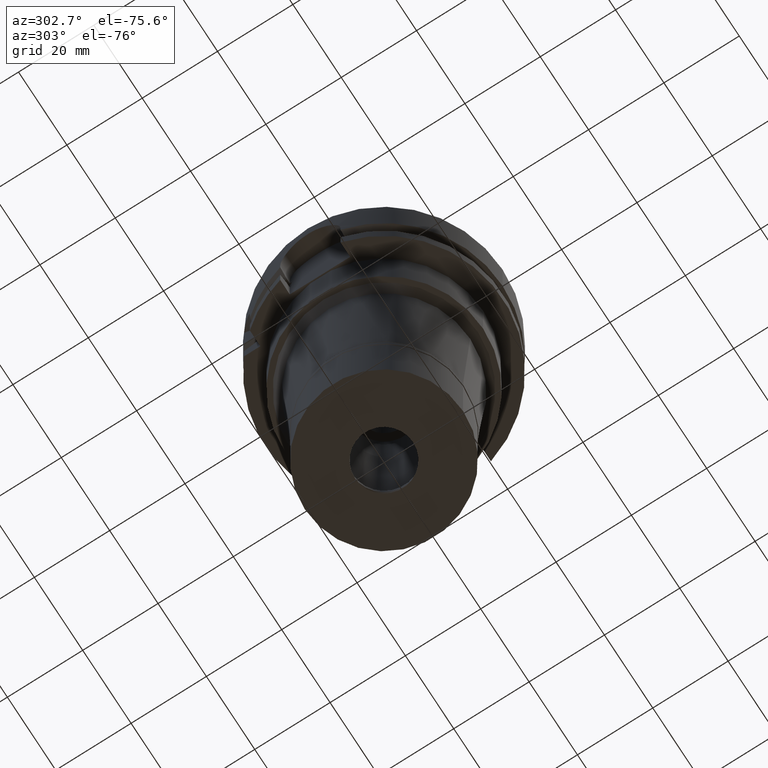
[diagram: clean part render]
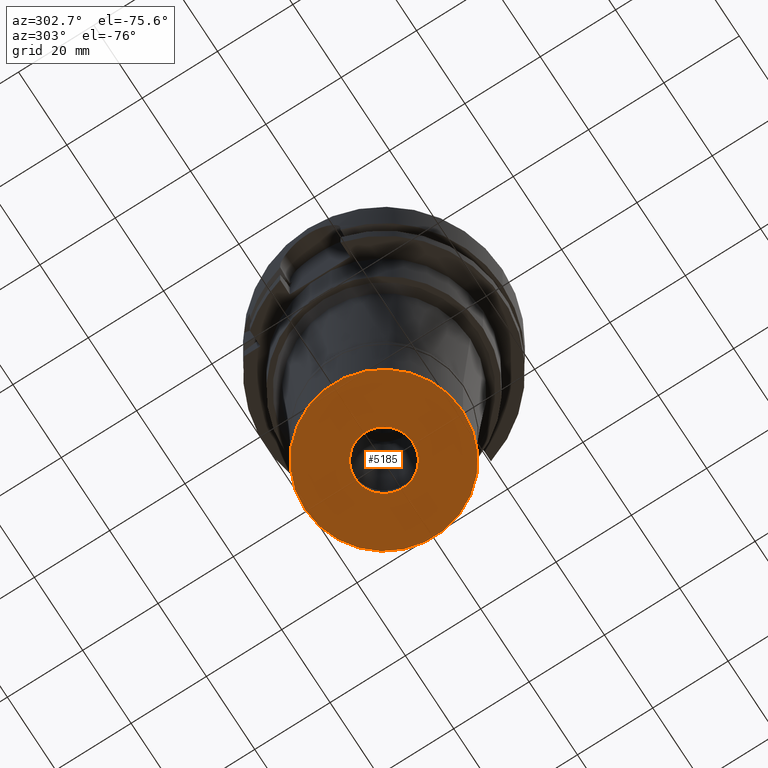
[diagram: same view with one face highlighted and labeled with its STEP entity id]
A machine part, auxiliary view. The second image highlights one B-rep face of the part: STEP entity #5185.
In plain terms, the highlighted planar face has unit normal (0, 0, -1).
Its self-contained STEP definition (entity closure, byte-faithful):
#101 = ORIENTED_EDGE ( 'NONE', *, *, #725, .F. ) ;
#170 = AXIS2_PLACEMENT_3D ( 'NONE', #4879, #4825, #1442 ) ;
#252 = AXIS2_PLACEMENT_3D ( 'NONE', #2249, #584, #3018 ) ;
#278 = DIRECTION ( 'NONE',  ( 0.0000000000000000000, -1.000000000000000000, 0.0000000000000000000 ) ) ;
#550 = CIRCLE ( 'NONE', #1163, 7.700000000000000178 ) ;
#584 = DIRECTION ( 'NONE',  ( 0.0000000000000000000, 0.0000000000000000000, -1.000000000000000000 ) ) ;
#725 = EDGE_CURVE ( 'NONE', #2837, #1575, #550, .T. ) ;
#1002 = CARTESIAN_POINT ( 'NONE',  ( 0.0000000000000000000, -7.700000000000000178, -24.29999999999999716 ) ) ;
#1140 = FACE_BOUND ( 'NONE', #4528, .T. ) ;
#1147 = CIRCLE ( 'NONE', #170, 21.00000000000000000 ) ;
#1163 = AXIS2_PLACEMENT_3D ( 'NONE', #2809, #2025, #2848 ) ;
#1304 = ORIENTED_EDGE ( 'NONE', *, *, #2766, .F. ) ;
#1442 = DIRECTION ( 'NONE',  ( 0.0000000000000000000, 1.000000000000000000, 0.0000000000000000000 ) ) ;
#1471 = EDGE_CURVE ( 'NONE', #1575, #2837, #3440, .T. ) ;
#1575 = VERTEX_POINT ( 'NONE', #2982 ) ;
#1644 = CARTESIAN_POINT ( 'NONE',  ( 0.0000000000000000000, -21.00000000000000000, -24.29999999999999716 ) ) ;
#1647 = CARTESIAN_POINT ( 'NONE',  ( 0.0000000000000000000, 0.0000000000000000000, -24.29999999999999716 ) ) ;
#1833 = CARTESIAN_POINT ( 'NONE',  ( 0.0000000000000000000, 0.0000000000000000000, -24.29999999999999716 ) ) ;
#1955 = CIRCLE ( 'NONE', #5146, 21.00000000000000000 ) ;
#2025 = DIRECTION ( 'NONE',  ( 0.0000000000000000000, 0.0000000000000000000, -1.000000000000000000 ) ) ;
#2249 = CARTESIAN_POINT ( 'NONE',  ( 0.0000000000000000000, 0.0000000000000000000, -24.29999999999999716 ) ) ;
#2451 = PLANE ( 'NONE',  #4892 ) ;
#2573 = CARTESIAN_POINT ( 'NONE',  ( 0.0000000000000000000, 21.00000000000000000, -24.29999999999999716 ) ) ;
#2766 = EDGE_CURVE ( 'NONE', #3064, #4595, #1955, .T. ) ;
#2809 = CARTESIAN_POINT ( 'NONE',  ( 0.0000000000000000000, 0.0000000000000000000, -24.29999999999999716 ) ) ;
#2837 = VERTEX_POINT ( 'NONE', #1002 ) ;
#2848 = DIRECTION ( 'NONE',  ( 0.0000000000000000000, -1.000000000000000000, 0.0000000000000000000 ) ) ;
#2857 = EDGE_CURVE ( 'NONE', #4595, #3064, #1147, .T. ) ;
#2901 = DIRECTION ( 'NONE',  ( 0.0000000000000000000, 0.0000000000000000000, -1.000000000000000000 ) ) ;
#2982 = CARTESIAN_POINT ( 'NONE',  ( 0.0000000000000000000, 7.700000000000000178, -24.29999999999999716 ) ) ;
#3018 = DIRECTION ( 'NONE',  ( 0.0000000000000000000, 1.000000000000000000, 0.0000000000000000000 ) ) ;
#3064 = VERTEX_POINT ( 'NONE', #1644 ) ;
#3440 = CIRCLE ( 'NONE', #252, 7.700000000000000178 ) ;
#3486 = EDGE_LOOP ( 'NONE', ( #4912, #1304 ) ) ;
#3597 = DIRECTION ( 'NONE',  ( 0.0000000000000000000, -1.000000000000000000, 0.0000000000000000000 ) ) ;
#4405 = DIRECTION ( 'NONE',  ( 0.0000000000000000000, 0.0000000000000000000, 1.000000000000000000 ) ) ;
#4528 = EDGE_LOOP ( 'NONE', ( #4925, #101 ) ) ;
#4595 = VERTEX_POINT ( 'NONE', #2573 ) ;
#4825 = DIRECTION ( 'NONE',  ( 0.0000000000000000000, 0.0000000000000000000, 1.000000000000000000 ) ) ;
#4879 = CARTESIAN_POINT ( 'NONE',  ( 0.0000000000000000000, 0.0000000000000000000, -24.29999999999999716 ) ) ;
#4892 = AXIS2_PLACEMENT_3D ( 'NONE', #1647, #2901, #278 ) ;
#4912 = ORIENTED_EDGE ( 'NONE', *, *, #2857, .F. ) ;
#4925 = ORIENTED_EDGE ( 'NONE', *, *, #1471, .F. ) ;
#5020 = FACE_OUTER_BOUND ( 'NONE', #3486, .T. ) ;
#5146 = AXIS2_PLACEMENT_3D ( 'NONE', #1833, #4405, #3597 ) ;
#5185 = ADVANCED_FACE ( 'NONE', ( #5020, #1140 ), #2451, .T. ) ;